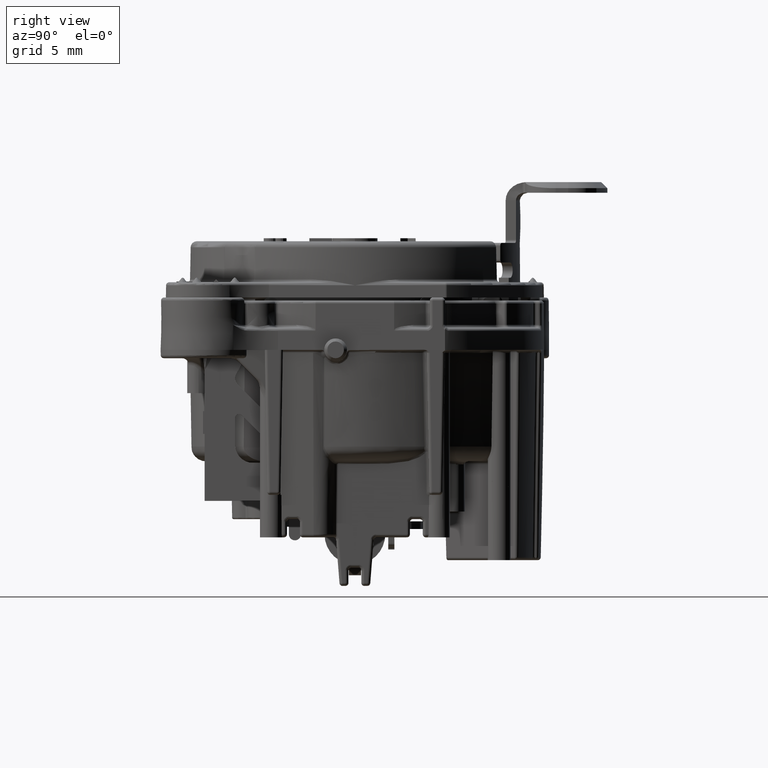
[diagram: clean part render]
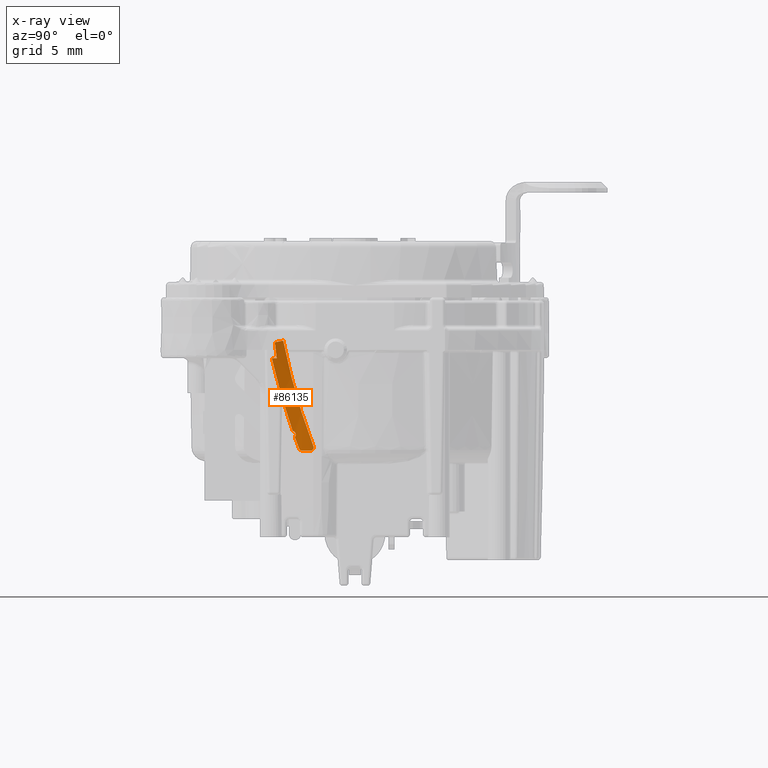
[diagram: x-ray — body ghosted, one internal face saturated and labeled with its STEP entity id]
A machine part, right view, then the same camera in x-ray: the body is ghosted and one INTERNAL B-rep face — a face not visible from any outside direction — is saturated and labeled: STEP entity #86135.
In plain terms, the highlighted cylindrical surface (partial cylindrical patch) has radius 35 mm, axis along (0, -0.9809, -0.1944).
Its self-contained STEP definition (entity closure, byte-faithful):
#427=DIRECTION('',(0.E0,-9.809236535679E-1,-1.943933791850E-1));
#428=VECTOR('',#427,5.632791829225E-1);
#429=CARTESIAN_POINT('',(8.8E0,-4.720746035036E0,6.039848970367E-1));
#430=LINE('',#429,#428);
#536=CARTESIAN_POINT('',(8.813866909852E0,-5.476100274099E0,-5.5E-1));
#537=CARTESIAN_POINT('',(8.814463897879E0,-5.367035563572E0,-5.5E-1));
#538=CARTESIAN_POINT('',(8.815080172573E0,-5.257970962026E0,-5.5E-1));
#539=CARTESIAN_POINT('',(8.815715736876E0,-5.148906469477E0,-5.5E-1));
#541=CARTESIAN_POINT('',(8.813866909852E0,-5.476100274099E0,-5.5E-1));
#31926=CARTESIAN_POINT('',(8.8E0,-4.720746035036E0,6.039848970367E-1));
#31927=CARTESIAN_POINT('',(8.8E0,-4.474249512712E0,-6.398551467106E-1));
#31928=CARTESIAN_POINT('',(8.933039433333E0,-3.897324344759E0,
-3.012657459062E0));
#31929=CARTESIAN_POINT('',(9.316823175656E0,-3.132239969120E0,
-5.302776576102E0));
#31930=CARTESIAN_POINT('',(9.555725321422E0,-2.723606796828E0,
-6.374838587379E0));
#31932=CARTESIAN_POINT('',(9.603805466087E0,-2.911464943311E0,
-6.640399696389E0));
#31933=CARTESIAN_POINT('',(9.604716807272E0,-2.889331388806E0,
-6.640273379900E0));
#31934=CARTESIAN_POINT('',(9.604984236472E0,-2.847515278176E0,
-6.633234394696E0));
#31935=CARTESIAN_POINT('',(9.601053741089E0,-2.789302654191E0,
-6.603333473817E0));
#31936=CARTESIAN_POINT('',(9.593116415968E0,-2.744121249441E0,
-6.557144772934E0));
#31937=CARTESIAN_POINT('',(9.582102485734E0,-2.715848832604E0,
-6.499545778295E0));
#31938=CARTESIAN_POINT('',(9.569046723780E0,-2.707808510521E0,
-6.435799747151E0));
#31939=CARTESIAN_POINT('',(9.560242385271E0,-2.715881337544E0,
-6.395106528411E0));
#31940=CARTESIAN_POINT('',(9.555725321422E0,-2.723606796828E0,
-6.374838587379E0));
#31942=DIRECTION('',(-4.084135993846E-2,-9.991497326468E-1,-5.638711748801E-3));
#31943=VECTOR('',#31942,5.721844798886E-1);
#31944=CARTESIAN_POINT('',(9.603805466087E0,-2.911464943311E0,
-6.640399696389E0));
#31945=LINE('',#31944,#31943);
#31946=CARTESIAN_POINT('',(9.546634686923E0,-3.669640220311E0,
-6.518309960590E0));
#31947=CARTESIAN_POINT('',(9.550832221988E0,-3.662346941851E0,
-6.537248550533E0));
#31948=CARTESIAN_POINT('',(9.558635210024E0,-3.642736545430E0,
-6.571082485025E0));
#31949=CARTESIAN_POINT('',(9.569032541872E0,-3.598359547150E0,
-6.612167024741E0));
#31950=CARTESIAN_POINT('',(9.576734150891E0,-3.543214993359E0,
-6.637950063454E0));
#31951=CARTESIAN_POINT('',(9.579596531489E0,-3.503867531960E0,
-6.643741618067E0));
#31952=CARTESIAN_POINT('',(9.580436673793E0,-3.483162913416E0,
-6.643626079738E0));
#31954=CARTESIAN_POINT('',(9.546634686923E0,-3.669640220311E0,
-6.518309960590E0));
#31955=CARTESIAN_POINT('',(9.490106880352E0,-3.767858361172E0,
-6.263265098805E0));
#31956=CARTESIAN_POINT('',(9.436665136347E0,-3.863742531395E0,
-6.006644113295E0));
#31957=CARTESIAN_POINT('',(9.386362687834E0,-3.957262311005E0,
-5.748560243741E0));
#31959=CARTESIAN_POINT('',(9.386362687834E0,-3.957262311005E0,
-5.748560243741E0));
#31960=CARTESIAN_POINT('',(9.381488821662E0,-3.928281368816E0,
-5.716015214303E0));
#31961=CARTESIAN_POINT('',(9.368414768946E0,-3.888191678746E0,
-5.635819310435E0));
#31962=CARTESIAN_POINT('',(9.344492029142E0,-3.897872818236E0,
-5.502678430547E0));
#31963=CARTESIAN_POINT('',(9.322867430041E0,-3.974800971854E0,
-5.392930780027E0));
#31964=CARTESIAN_POINT('',(9.313714042975E0,-4.056911918870E0,
-5.355292175724E0));
#31965=CARTESIAN_POINT('',(9.311012634752E0,-4.100129860446E0,
-5.347917818917E0));
#31967=CARTESIAN_POINT('',(9.311012634752E0,-4.100129860446E0,
-5.347917818917E0));
#31968=CARTESIAN_POINT('',(9.142165758493E0,-4.426953090232E0,
-4.416444520868E0));
#31969=CARTESIAN_POINT('',(8.928129985971E0,-4.922138398362E0,
-2.828782676074E0));
#31970=CARTESIAN_POINT('',(8.832808996322E0,-5.327863220795E0,
-1.206075442776E0));
#31971=CARTESIAN_POINT('',(8.813866909852E0,-5.476100274099E0,-5.5E-1));
#31977=CARTESIAN_POINT('',(8.8E0,-5.273279909127E0,4.944871532438E-1));
#31978=CARTESIAN_POINT('',(8.8E0,-5.259311888099E0,3.781176914450E-1));
#31979=CARTESIAN_POINT('',(8.801170660734E0,-5.231400795033E0,
1.455861721113E-1));
#31980=CARTESIAN_POINT('',(8.806419367989E0,-5.189831783739E0,
-2.025805297774E-1));
#31981=CARTESIAN_POINT('',(8.812233480950E0,-5.162465648590E0,
-4.342654986048E-1));
#31982=CARTESIAN_POINT('',(8.815715736876E0,-5.148906469478E0,-5.5E-1));
#36905=CARTESIAN_POINT('',(8.8E0,-4.720746035036E0,6.039848970367E-1));
#36906=VERTEX_POINT('',#36905);
#36955=CARTESIAN_POINT('',(9.555725321422E0,-2.723606796828E0,
-6.374838587379E0));
#36957=VERTEX_POINT('',#36955);
#36959=VERTEX_POINT('',#31932);
#36960=CARTESIAN_POINT('',(9.580436673793E0,-3.483162913416E0,
-6.643626079738E0));
#36961=VERTEX_POINT('',#36960);
#36965=CARTESIAN_POINT('',(9.546634686923E0,-3.669640220311E0,
-6.518309960590E0));
#36967=VERTEX_POINT('',#36965);
#36970=CARTESIAN_POINT('',(9.311012634752E0,-4.100129860446E0,
-5.347917818917E0));
#36972=VERTEX_POINT('',#36970);
#36974=CARTESIAN_POINT('',(9.386362687834E0,-3.957262311005E0,
-5.748560243741E0));
#36975=VERTEX_POINT('',#36974);
#36991=VERTEX_POINT('',#541);
#36993=VERTEX_POINT('',#539);
#37065=CARTESIAN_POINT('',(8.8E0,-5.273279909127E0,4.944871532438E-1));
#37066=VERTEX_POINT('',#37065);
#86111=CARTESIAN_POINT('',(4.38E1,-4.720746035036E0,6.039848970367E-1));
#86112=DIRECTION('',(0.E0,-9.809236535679E-1,-1.943933791849E-1));
#86113=DIRECTION('',(-1.E0,0.E0,0.E0));
#86114=AXIS2_PLACEMENT_3D('',#86111,#86112,#86113);
#86115=CYLINDRICAL_SURFACE('',#86114,3.5E1);
#86116=ORIENTED_EDGE('',*,*,#40225,.T.);
#86118=ORIENTED_EDGE('',*,*,#86117,.F.);
#86119=ORIENTED_EDGE('',*,*,#40133,.F.);
#86121=ORIENTED_EDGE('',*,*,#86120,.T.);
#86123=ORIENTED_EDGE('',*,*,#86122,.F.);
#86125=ORIENTED_EDGE('',*,*,#86124,.T.);
#86127=ORIENTED_EDGE('',*,*,#86126,.F.);
#86129=ORIENTED_EDGE('',*,*,#86128,.T.);
#86131=ORIENTED_EDGE('',*,*,#86130,.T.);
#86132=ORIENTED_EDGE('',*,*,#86100,.T.);
#86133=EDGE_LOOP('',(#86116,#86118,#86119,#86121,#86123,#86125,#86127,#86129,
#86131,#86132));
#86134=FACE_OUTER_BOUND('',#86133,.F.);
#540=B_SPLINE_CURVE_WITH_KNOTS('',3,(#536,#537,#538,#539),.UNSPECIFIED.,.F.,.F.,
(4,4),(0.E0,1.E0),.UNSPECIFIED.);
#31931=B_SPLINE_CURVE_WITH_KNOTS('',3,(#31926,#31927,#31928,#31929,#31930),
.UNSPECIFIED.,.F.,.F.,(4,1,4),(0.E0,5.197457699181E-1,1.E0),.UNSPECIFIED.);
#31941=B_SPLINE_CURVE_WITH_KNOTS('',3,(#31932,#31933,#31934,#31935,#31936,
#31937,#31938,#31939,#31940),.UNSPECIFIED.,.F.,.F.,(4,1,1,1,1,1,4),(0.E0,
1.666666666667E-1,3.333333333333E-1,5.E-1,6.666666666667E-1,8.333333333333E-1,
1.E0),.UNSPECIFIED.);
#31953=B_SPLINE_CURVE_WITH_KNOTS('',3,(#31946,#31947,#31948,#31949,#31950,
#31951,#31952),.UNSPECIFIED.,.F.,.F.,(4,1,1,1,4),(0.E0,2.5E-1,5.E-1,7.5E-1,
1.E0),.UNSPECIFIED.);
#31958=B_SPLINE_CURVE_WITH_KNOTS('',3,(#31954,#31955,#31956,#31957),
.UNSPECIFIED.,.F.,.F.,(4,4),(0.E0,1.E0),.UNSPECIFIED.);
#31966=B_SPLINE_CURVE_WITH_KNOTS('',3,(#31959,#31960,#31961,#31962,#31963,
#31964,#31965),.UNSPECIFIED.,.F.,.F.,(4,1,1,1,4),(0.E0,2.5E-1,5.E-1,7.5E-1,
1.E0),.UNSPECIFIED.);
#31972=B_SPLINE_CURVE_WITH_KNOTS('',3,(#31967,#31968,#31969,#31970,#31971),
.UNSPECIFIED.,.F.,.F.,(4,1,4),(0.E0,5.980955159342E-1,1.E0),.UNSPECIFIED.);
#31983=B_SPLINE_CURVE_WITH_KNOTS('',3,(#31977,#31978,#31979,#31980,#31981,
#31982),.UNSPECIFIED.,.F.,.F.,(4,1,1,4),(0.E0,3.333333333333E-1,
6.666666666667E-1,1.E0),.UNSPECIFIED.);
#40133=EDGE_CURVE('',#36906,#37066,#430,.T.);
#40225=EDGE_CURVE('',#36991,#36993,#540,.T.);
#86100=EDGE_CURVE('',#36972,#36991,#31972,.T.);
#86117=EDGE_CURVE('',#37066,#36993,#31983,.T.);
#86120=EDGE_CURVE('',#36906,#36957,#31931,.T.);
#86122=EDGE_CURVE('',#36959,#36957,#31941,.T.);
#86124=EDGE_CURVE('',#36959,#36961,#31945,.T.);
#86126=EDGE_CURVE('',#36967,#36961,#31953,.T.);
#86128=EDGE_CURVE('',#36967,#36975,#31958,.T.);
#86130=EDGE_CURVE('',#36975,#36972,#31966,.T.);
#86135=ADVANCED_FACE('',(#86134),#86115,.F.);